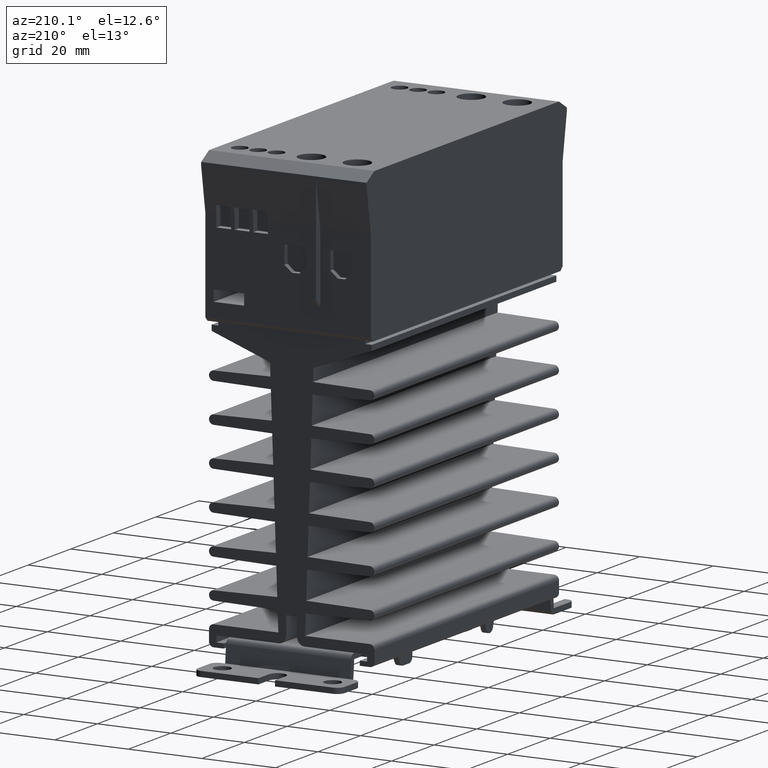
[diagram: clean part render]
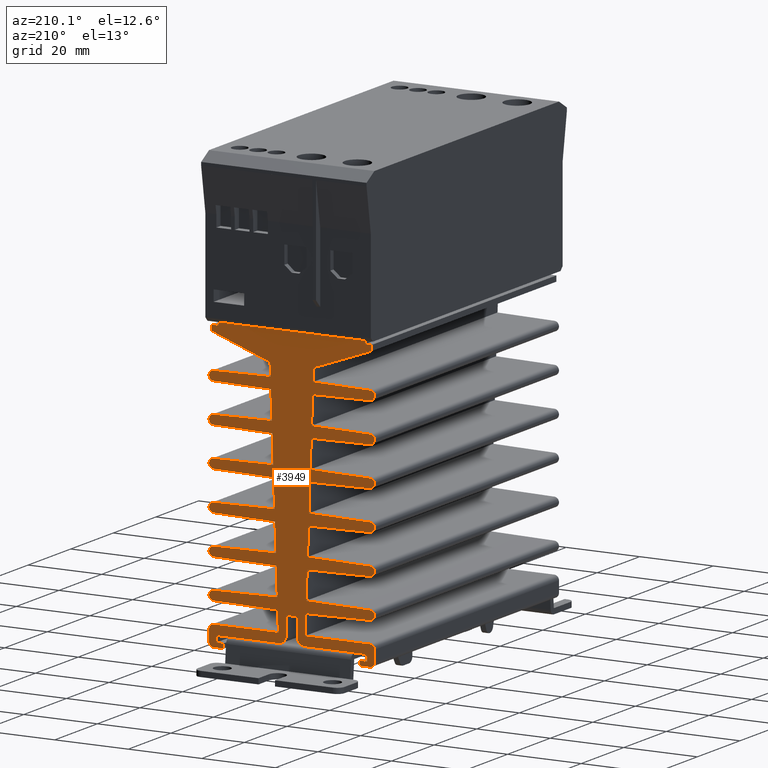
[diagram: same view with one face highlighted and labeled with its STEP entity id]
A machine part, auxiliary view. The second image highlights one B-rep face of the part: STEP entity #3949.
In plain terms, the highlighted planar face has unit normal (0, -1, 0).
Its self-contained STEP definition (entity closure, byte-faithful):
#89 = DIRECTION ( 'NONE',  ( -1.000000000000000000, -0.000000000000000000, -0.000000000000000000 ) ) ;
#104 = VECTOR ( 'NONE', #11266, 39.37007874015748854 ) ;
#108 = ORIENTED_EDGE ( 'NONE', *, *, #12640, .F. ) ;
#110 = CARTESIAN_POINT ( 'NONE',  ( 0.8374730514978977469, 1.704724409448818978, -0.4724484401989960669 ) ) ;
#114 = DIRECTION ( 'NONE',  ( 0.000000000000000000, -1.000000000000000000, 0.000000000000000000 ) ) ;
#124 = VECTOR ( 'NONE', #8234, 39.37007874015748854 ) ;
#142 = VERTEX_POINT ( 'NONE', #11741 ) ;
#153 = DIRECTION ( 'NONE',  ( 0.000000000000000000, 0.000000000000000000, 1.000000000000000000 ) ) ;
#179 = VECTOR ( 'NONE', #5690, 39.37007874015748854 ) ;
#191 = EDGE_CURVE ( 'NONE', #11931, #11494, #3990, .T. ) ;
#205 = CARTESIAN_POINT ( 'NONE',  ( 0.2679769780948815239, 1.704724409448818978, -2.984251968503937480 ) ) ;
#211 = VECTOR ( 'NONE', #5604, 39.37007874015748143 ) ;
#215 = VERTEX_POINT ( 'NONE', #1133 ) ;
#216 = EDGE_CURVE ( 'NONE', #5212, #12240, #6771, .T. ) ;
#224 = DIRECTION ( 'NONE',  ( 0.000000000000000000, 0.000000000000000000, 1.000000000000000000 ) ) ;
#227 = DIRECTION ( 'NONE',  ( -0.000000000000000000, -1.000000000000000000, -0.000000000000000000 ) ) ;
#272 = VERTEX_POINT ( 'NONE', #8054 ) ;
#278 = EDGE_CURVE ( 'NONE', #1367, #11478, #3499, .T. ) ;
#279 = DIRECTION ( 'NONE',  ( 0.000000000000000000, 0.000000000000000000, 1.000000000000000000 ) ) ;
#457 = VERTEX_POINT ( 'NONE', #857 ) ;
#471 = ORIENTED_EDGE ( 'NONE', *, *, #12169, .F. ) ;
#502 = LINE ( 'NONE', #6511, #12016 ) ;
#509 = VERTEX_POINT ( 'NONE', #12547 ) ;
#511 = EDGE_CURVE ( 'NONE', #4203, #6817, #4828, .T. ) ;
#529 = ORIENTED_EDGE ( 'NONE', *, *, #2043, .F. ) ;
#542 = ORIENTED_EDGE ( 'NONE', *, *, #2685, .F. ) ;
#545 = ORIENTED_EDGE ( 'NONE', *, *, #3127, .F. ) ;
#586 = CARTESIAN_POINT ( 'NONE',  ( -0.1547286108903885848, 1.704724409448818978, -2.547145264887157534 ) ) ;
#591 = CARTESIAN_POINT ( 'NONE',  ( -0.8582677165354331006, 1.704724409448818978, -0.09842519685039370636 ) ) ;
#598 = ORIENTED_EDGE ( 'NONE', *, *, #1713, .F. ) ;
#615 = ORIENTED_EDGE ( 'NONE', *, *, #8262, .F. ) ;
#640 = VECTOR ( 'NONE', #9376, 39.37007874015748143 ) ;
#643 = VERTEX_POINT ( 'NONE', #3413 ) ;
#645 = LINE ( 'NONE', #2562, #4109 ) ;
#670 = LINE ( 'NONE', #6556, #8925 ) ;
#692 = DIRECTION ( 'NONE',  ( -0.9998476951563911586, 0.000000000000000000, -0.01745240643728455249 ) ) ;
#693 = DIRECTION ( 'NONE',  ( 0.9998476951563912696, 0.000000000000000000, 0.01745240643728170407 ) ) ;
#704 = EDGE_CURVE ( 'NONE', #12538, #11361, #5523, .T. ) ;
#705 = VERTEX_POINT ( 'NONE', #591 ) ;
#707 = DIRECTION ( 'NONE',  ( -0.9998476951563911586, 0.000000000000000000, -0.01745240643728464963 ) ) ;
#754 = CARTESIAN_POINT ( 'NONE',  ( -0.8366141732283465249, 1.704724409448818978, -1.773622047244094446 ) ) ;
#766 = ORIENTED_EDGE ( 'NONE', *, *, #11023, .F. ) ;
#778 = EDGE_CURVE ( 'NONE', #10996, #6789, #7434, .T. ) ;
#782 = CIRCLE ( 'NONE', #6498, 0.07874015748031502893 ) ;
#792 = VECTOR ( 'NONE', #4495, 39.37007874015748143 ) ;
#799 = DIRECTION ( 'NONE',  ( 0.000000000000000000, 0.000000000000000000, 1.000000000000000000 ) ) ;
#805 = CARTESIAN_POINT ( 'NONE',  ( -0.8374730514978977469, 1.704724409448818978, -0.5708586464151772510 ) ) ;
#816 = VERTEX_POINT ( 'NONE', #8653 ) ;
#857 = CARTESIAN_POINT ( 'NONE',  ( 0.1504571211386029617, 1.704724409448818978, -2.669464727314661445 ) ) ;
#865 = EDGE_CURVE ( 'NONE', #9658, #12097, #2645, .T. ) ;
#866 = CARTESIAN_POINT ( 'NONE',  ( -0.8582677165354331006, 1.704724409448818978, -0.03937007874015747977 ) ) ;
#887 = EDGE_CURVE ( 'NONE', #8891, #2118, #5582, .T. ) ;
#893 = VERTEX_POINT ( 'NONE', #3731 ) ;
#1002 = VECTOR ( 'NONE', #2360, 39.37007874015748854 ) ;
#1033 = VECTOR ( 'NONE', #2287, 39.37007874015748143 ) ;
#1041 = CARTESIAN_POINT ( 'NONE',  ( -0.8374730514978977469, 1.704724409448818978, -0.9881814810608464672 ) ) ;
#1051 = EDGE_CURVE ( 'NONE', #10558, #11000, #4999, .T. ) ;
#1057 = DIRECTION ( 'NONE',  ( 0.000000000000000000, 0.000000000000000000, 1.000000000000000000 ) ) ;
#1058 = CARTESIAN_POINT ( 'NONE',  ( -0.8858267716535432879, 1.704724409448818978, -2.931102362204724532 ) ) ;
#1069 = CARTESIAN_POINT ( 'NONE',  ( 0.1650392441008238231, 1.704724409448818978, -2.251887360765897572 ) ) ;
#1078 = CARTESIAN_POINT ( 'NONE',  ( 0.1942034900252653518, 1.704724409448818978, -1.416732627668364275 ) ) ;
#1091 = VERTEX_POINT ( 'NONE', #9274 ) ;
#1131 = LINE ( 'NONE', #1069, #1860 ) ;
#1133 = CARTESIAN_POINT ( 'NONE',  ( -0.05905511811023504698, 1.704724409448818978, -2.708661417322834719 ) ) ;
#1137 = VECTOR ( 'NONE', #10939, 39.37007874015748143 ) ;
#1148 = AXIS2_PLACEMENT_3D ( 'NONE', #11261, #9226, #6163 ) ;
#1166 = CARTESIAN_POINT ( 'NONE',  ( 0.1796213670630445181, 1.704724409448818978, -1.834309994217129924 ) ) ;
#1170 = VECTOR ( 'NONE', #6994, 39.37007874015748143 ) ;
#1190 = ORIENTED_EDGE ( 'NONE', *, *, #10111, .F. ) ;
#1233 = CARTESIAN_POINT ( 'NONE',  ( -0.8374730514978977469, 1.704724409448818978, -0.8897712748446653386 ) ) ;
#1238 = VECTOR ( 'NONE', #11949, 39.37007874015748854 ) ;
#1239 = DIRECTION ( 'NONE',  ( 0.000000000000000000, 0.000000000000000000, -1.000000000000000000 ) ) ;
#1253 = CARTESIAN_POINT ( 'NONE',  ( 0.8366141732283465249, 1.704724409448818978, -2.190944881889763884 ) ) ;
#1262 = EDGE_CURVE ( 'NONE', #8512, #8093, #4336, .T. ) ;
#1272 = DIRECTION ( 'NONE',  ( -0.000000000000000000, -0.000000000000000000, -1.000000000000000000 ) ) ;
#1297 = CARTESIAN_POINT ( 'NONE',  ( -0.8366141732283465249, 1.704724409448818978, -1.356299212598425230 ) ) ;
#1332 = CARTESIAN_POINT ( 'NONE',  ( 0.1547286108903885848, 1.704724409448818978, -2.547145264887157534 ) ) ;
#1347 = VERTEX_POINT ( 'NONE', #866 ) ;
#1361 = CIRCLE ( 'NONE', #3209, 0.04921259842519689481 ) ;
#1367 = VERTEX_POINT ( 'NONE', #6564 ) ;
#1400 = CARTESIAN_POINT ( 'NONE',  ( -0.1547286108903885848, 1.704724409448818978, -2.547145264887157534 ) ) ;
#1418 = DIRECTION ( 'NONE',  ( -0.000000000000000000, -1.000000000000000000, -0.000000000000000000 ) ) ;
#1420 = LINE ( 'NONE', #12031, #10608 ) ;
#1439 = AXIS2_PLACEMENT_3D ( 'NONE', #9812, #11596, #4766 ) ;
#1443 = ORIENTED_EDGE ( 'NONE', *, *, #10199, .F. ) ;
#1465 = LINE ( 'NONE', #1400, #1002 ) ;
#1487 = VERTEX_POINT ( 'NONE', #8926 ) ;
#1520 = VECTOR ( 'NONE', #11938, 39.37007874015748143 ) ;
#1532 = VERTEX_POINT ( 'NONE', #9876 ) ;
#1538 = ORIENTED_EDGE ( 'NONE', *, *, #865, .F. ) ;
#1543 = LINE ( 'NONE', #5516, #8756 ) ;
#1564 = CARTESIAN_POINT ( 'NONE',  ( -0.7283464566929134243, 1.704724409448818978, -3.100393700787401841 ) ) ;
#1577 = DIRECTION ( 'NONE',  ( 0.000000000000000000, 0.000000000000000000, 1.000000000000000000 ) ) ;
#1621 = ORIENTED_EDGE ( 'NONE', *, *, #10960, .F. ) ;
#1632 = CARTESIAN_POINT ( 'NONE',  ( -0.8374730514978977469, 1.704724409448818978, -2.240149984997854116 ) ) ;
#1694 = DIRECTION ( 'NONE',  ( 1.000000000000000000, 0.000000000000000000, 0.000000000000000000 ) ) ;
#1707 = CARTESIAN_POINT ( 'NONE',  ( -0.8374730514978977469, 1.704724409448818978, -2.657472819643523554 ) ) ;
#1713 = EDGE_CURVE ( 'NONE', #7411, #5882, #3610, .T. ) ;
#1740 = ORIENTED_EDGE ( 'NONE', *, *, #9184, .F. ) ;
#1743 = ORIENTED_EDGE ( 'NONE', *, *, #4654, .F. ) ;
#1754 = VERTEX_POINT ( 'NONE', #6551 ) ;
#1790 = ORIENTED_EDGE ( 'NONE', *, *, #7802, .F. ) ;
#1832 = EDGE_CURVE ( 'NONE', #4976, #12568, #8533, .T. ) ;
#1860 = VECTOR ( 'NONE', #4931, 39.37007874015748143 ) ;
#1875 = VERTEX_POINT ( 'NONE', #5840 ) ;
#1886 = VERTEX_POINT ( 'NONE', #9040 ) ;
#1912 = DIRECTION ( 'NONE',  ( -1.000000000000000000, -0.000000000000000000, -0.000000000000000000 ) ) ;
#1924 = CARTESIAN_POINT ( 'NONE',  ( 0.8582677165354331006, 1.704724409448818978, -0.09842519685039370636 ) ) ;
#1937 = CARTESIAN_POINT ( 'NONE',  ( -0.8374730514978977469, 1.704724409448818978, -0.4724484401989960669 ) ) ;
#1944 = VECTOR ( 'NONE', #12601, 39.37007874015748854 ) ;
#1961 = EDGE_CURVE ( 'NONE', #12240, #2079, #1361, .T. ) ;
#1962 = AXIS2_PLACEMENT_3D ( 'NONE', #6854, #4956, #224 ) ;
#1972 = DIRECTION ( 'NONE',  ( -0.000000000000000000, -1.000000000000000000, -0.000000000000000000 ) ) ;
#1989 = CARTESIAN_POINT ( 'NONE',  ( -0.8366141732283465249, 1.704724409448818978, -2.608267716535433323 ) ) ;
#1996 = EDGE_CURVE ( 'NONE', #816, #9658, #6275, .T. ) ;
#2043 = EDGE_CURVE ( 'NONE', #9307, #11036, #10136, .T. ) ;
#2056 = CARTESIAN_POINT ( 'NONE',  ( -0.2087856129874862410, 1.704724409448818978, -0.9991552611195984035 ) ) ;
#2059 = CIRCLE ( 'NONE', #1439, 0.04921259842519689481 ) ;
#2074 = DIRECTION ( 'NONE',  ( -1.000000000000000000, -0.000000000000000000, -0.000000000000000000 ) ) ;
#2079 = VERTEX_POINT ( 'NONE', #5380 ) ;
#2083 = EDGE_CURVE ( 'NONE', #2079, #142, #11071, .T. ) ;
#2109 = EDGE_CURVE ( 'NONE', #6076, #10996, #11316, .T. ) ;
#2114 = LINE ( 'NONE', #9980, #1238 ) ;
#2118 = VERTEX_POINT ( 'NONE', #7429 ) ;
#2156 = CARTESIAN_POINT ( 'NONE',  ( -0.8366141732283465249, 1.704724409448818978, -2.190944881889763884 ) ) ;
#2213 = DIRECTION ( 'NONE',  ( -0.000000000000000000, -0.000000000000000000, 1.000000000000000000 ) ) ;
#2220 = LINE ( 'NONE', #9957, #1033 ) ;
#2233 = VECTOR ( 'NONE', #3386, 39.37007874015748143 ) ;
#2236 = CIRCLE ( 'NONE', #7342, 0.04921259842519682542 ) ;
#2246 = DIRECTION ( 'NONE',  ( 0.03489949670250183655, 0.000000000000000000, 0.9993908270190955401 ) ) ;
#2254 = AXIS2_PLACEMENT_3D ( 'NONE', #754, #3766, #12385 ) ;
#2284 = ORIENTED_EDGE ( 'NONE', *, *, #278, .F. ) ;
#2287 = DIRECTION ( 'NONE',  ( 0.03489949670250153818, 0.000000000000000000, 0.9993908270190957621 ) ) ;
#2288 = EDGE_CURVE ( 'NONE', #8831, #6681, #6242, .T. ) ;
#2296 = ORIENTED_EDGE ( 'NONE', *, *, #11432, .F. ) ;
#2318 = CARTESIAN_POINT ( 'NONE',  ( 0.8374730514978977469, 1.704724409448818978, -1.724416944136004215 ) ) ;
#2327 = ORIENTED_EDGE ( 'NONE', *, *, #7315, .F. ) ;
#2337 = VERTEX_POINT ( 'NONE', #10848 ) ;
#2347 = VECTOR ( 'NONE', #3133, 39.37007874015748143 ) ;
#2360 = DIRECTION ( 'NONE',  ( -0.9998476951563911586, 0.000000000000000000, -0.01745240643728510066 ) ) ;
#2373 = LINE ( 'NONE', #10360, #792 ) ;
#2383 = DIRECTION ( 'NONE',  ( -0.000000000000000000, -0.000000000000000000, 1.000000000000000000 ) ) ;
#2387 = ORIENTED_EDGE ( 'NONE', *, *, #778, .F. ) ;
#2393 = VECTOR ( 'NONE', #89, 39.37007874015748143 ) ;
#2441 = CARTESIAN_POINT ( 'NONE',  ( 0.2129860384567693055, 1.704724409448818978, -0.8788708134852026843 ) ) ;
#2476 = VERTEX_POINT ( 'NONE', #10326 ) ;
#2552 = CARTESIAN_POINT ( 'NONE',  ( 0.8374730514978977469, 1.704724409448818978, -1.405504315706515683 ) ) ;
#2553 = DIRECTION ( 'NONE',  ( 0.03489949670250168390, 0.000000000000000000, -0.9993908270190955401 ) ) ;
#2562 = CARTESIAN_POINT ( 'NONE',  ( 0.2679769780948815239, 1.704724409448818978, -3.051181102362204633 ) ) ;
#2611 = CARTESIAN_POINT ( 'NONE',  ( 0.8366141732283465249, 1.704724409448818978, -2.608267716535433323 ) ) ;
#2620 = CARTESIAN_POINT ( 'NONE',  ( 0.2087856129874862410, 1.704724409448818978, -0.9991552611195984035 ) ) ;
#2635 = LINE ( 'NONE', #2441, #9988 ) ;
#2645 = LINE ( 'NONE', #4814, #7658 ) ;
#2668 = CIRCLE ( 'NONE', #12243, 0.04921259842519689481 ) ;
#2685 = EDGE_CURVE ( 'NONE', #2476, #8512, #7700, .T. ) ;
#2719 = CARTESIAN_POINT ( 'NONE',  ( 0.8070866141732283561, 1.704724409448818978, -3.051181102362204633 ) ) ;
#2744 = CARTESIAN_POINT ( 'NONE',  ( -0.8374730514978977469, 1.704724409448818978, -1.405504315706515683 ) ) ;
#2815 = CARTESIAN_POINT ( 'NONE',  ( 0.1504571211386031560, 1.704724409448818978, -2.669464727314661445 ) ) ;
#2834 = LINE ( 'NONE', #3980, #5671 ) ;
#2850 = CARTESIAN_POINT ( 'NONE',  ( 0.1984216815651739796, 1.704724409448818978, -1.295939426335692701 ) ) ;
#2874 = VERTEX_POINT ( 'NONE', #4326 ) ;
#2885 = CARTESIAN_POINT ( 'NONE',  ( -0.8858267716535432879, 1.704724409448818978, -3.051181102362204633 ) ) ;
#2895 = DIRECTION ( 'NONE',  ( -0.9998476951563911586, 0.000000000000000000, -0.01745240643728535046 ) ) ;
#2929 = ORIENTED_EDGE ( 'NONE', *, *, #8865, .F. ) ;
#2934 = EDGE_CURVE ( 'NONE', #11036, #3368, #10638, .T. ) ;
#2947 = ORIENTED_EDGE ( 'NONE', *, *, #9458, .F. ) ;
#3010 = AXIS2_PLACEMENT_3D ( 'NONE', #8472, #7514, #10695 ) ;
#3058 = VERTEX_POINT ( 'NONE', #2719 ) ;
#3068 = AXIS2_PLACEMENT_3D ( 'NONE', #7332, #6185, #1577 ) ;
#3076 = VERTEX_POINT ( 'NONE', #6989 ) ;
#3098 = CARTESIAN_POINT ( 'NONE',  ( 0.2322834645669291376, 1.704724409448818978, -0.3262648316863236420 ) ) ;
#3100 = EDGE_CURVE ( 'NONE', #705, #1347, #8852, .T. ) ;
#3101 = CARTESIAN_POINT ( 'NONE',  ( -0.8366141732283465249, 1.704724409448818978, -2.881889763779527769 ) ) ;
#3124 = LINE ( 'NONE', #11639, #5742 ) ;
#3127 = EDGE_CURVE ( 'NONE', #11591, #8831, #10932, .T. ) ;
#3133 = DIRECTION ( 'NONE',  ( 0.9998476951563912696, 0.000000000000000000, 0.01745240643728245347 ) ) ;
#3161 = DIRECTION ( 'NONE',  ( 0.000000000000000000, 0.000000000000000000, -1.000000000000000000 ) ) ;
#3164 = LINE ( 'NONE', #7051, #1170 ) ;
#3181 = VERTEX_POINT ( 'NONE', #586 ) ;
#3204 = VECTOR ( 'NONE', #8302, 39.37007874015748143 ) ;
#3209 = AXIS2_PLACEMENT_3D ( 'NONE', #9163, #1418, #10242 ) ;
#3215 = VERTEX_POINT ( 'NONE', #10112 ) ;
#3261 = EDGE_CURVE ( 'NONE', #8093, #5212, #5771, .T. ) ;
#3278 = CARTESIAN_POINT ( 'NONE',  ( 0.1430390754059370217, 1.704724409448818978, -2.881889763779527769 ) ) ;
#3282 = VECTOR ( 'NONE', #10716, 39.37007874015748143 ) ;
#3284 = VECTOR ( 'NONE', #1272, 39.37007874015748143 ) ;
#3287 = ORIENTED_EDGE ( 'NONE', *, *, #6360, .F. ) ;
#3289 = CARTESIAN_POINT ( 'NONE',  ( 0.8374730514978977469, 1.704724409448818978, -2.559062613427342203 ) ) ;
#3301 = ORIENTED_EDGE ( 'NONE', *, *, #5727, .F. ) ;
#3367 = CARTESIAN_POINT ( 'NONE',  ( -0.8374730514978977469, 1.704724409448818978, -2.559062613427342203 ) ) ;
#3368 = VERTEX_POINT ( 'NONE', #2056 ) ;
#3378 = DIRECTION ( 'NONE',  ( 0.000000000000000000, 0.000000000000000000, 1.000000000000000000 ) ) ;
#3386 = DIRECTION ( 'NONE',  ( 0.000000000000000000, 0.000000000000000000, -1.000000000000000000 ) ) ;
#3413 = CARTESIAN_POINT ( 'NONE',  ( -0.8374730514978977469, 1.704724409448818978, -1.822827150352184900 ) ) ;
#3422 = VERTEX_POINT ( 'NONE', #1924 ) ;
#3490 = VECTOR ( 'NONE', #4464, 39.37007874015748143 ) ;
#3499 = LINE ( 'NONE', #1632, #1520 ) ;
#3514 = CARTESIAN_POINT ( 'NONE',  ( 0.8070866141732283561, 1.704724409448818978, -3.051181102362204633 ) ) ;
#3533 = ORIENTED_EDGE ( 'NONE', *, *, #3798, .T. ) ;
#3610 = LINE ( 'NONE', #7761, #12570 ) ;
#3676 = CARTESIAN_POINT ( 'NONE',  ( 0.7283464566929134243, 1.704724409448818978, -3.100393700787401841 ) ) ;
#3681 = VECTOR ( 'NONE', #8068, 39.37007874015748143 ) ;
#3731 = CARTESIAN_POINT ( 'NONE',  ( -0.8374730514978977469, 1.704724409448818978, -1.724416944136004215 ) ) ;
#3734 = ORIENTED_EDGE ( 'NONE', *, *, #2109, .F. ) ;
#3755 = LINE ( 'NONE', #12251, #3490 ) ;
#3766 = DIRECTION ( 'NONE',  ( 0.000000000000000000, -1.000000000000000000, 0.000000000000000000 ) ) ;
#3781 = CARTESIAN_POINT ( 'NONE',  ( -0.8070866141732283561, 1.704724409448818978, -2.984251968503937480 ) ) ;
#3798 = EDGE_CURVE ( 'NONE', #7642, #12086, #5344, .T. ) ;
#3843 = ORIENTED_EDGE ( 'NONE', *, *, #9882, .F. ) ;
#3853 = DIRECTION ( 'NONE',  ( -1.000000000000000000, -0.000000000000000000, -0.000000000000000000 ) ) ;
#3875 = ORIENTED_EDGE ( 'NONE', *, *, #511, .F. ) ;
#3896 = VERTEX_POINT ( 'NONE', #11217 ) ;
#3900 = DIRECTION ( 'NONE',  ( -0.9998476951563911586, 0.000000000000000000, -0.01745240643728505209 ) ) ;
#3920 = CARTESIAN_POINT ( 'NONE',  ( -0.05905511811023495677, 1.704724409448818978, -2.905511811023622215 ) ) ;
#3931 = VERTEX_POINT ( 'NONE', #9682 ) ;
#3939 = CARTESIAN_POINT ( 'NONE',  ( 0.2233677359497071024, 1.704724409448818978, -0.5815778945708323100 ) ) ;
#3949 = ADVANCED_FACE ( 'NONE', ( #11407 ), #11664, .F. ) ;
#3951 = LINE ( 'NONE', #10961, #8808 ) ;
#3960 = CARTESIAN_POINT ( 'NONE',  ( 0.2679769780948815239, 1.704724409448818978, -0.03937007874015747977 ) ) ;
#3968 = EDGE_CURVE ( 'NONE', #8175, #11682, #670, .T. ) ;
#3969 = ORIENTED_EDGE ( 'NONE', *, *, #704, .F. ) ;
#3970 = VERTEX_POINT ( 'NONE', #2850 ) ;
#3980 = CARTESIAN_POINT ( 'NONE',  ( 0.2322834645669291376, 1.704724409448818978, -0.3262648316863236420 ) ) ;
#3990 = CIRCLE ( 'NONE', #5213, 0.07874015748031502893 ) ;
#3998 = VERTEX_POINT ( 'NONE', #6800 ) ;
#4109 = VECTOR ( 'NONE', #7362, 39.37007874015748143 ) ;
#4123 = CARTESIAN_POINT ( 'NONE',  ( -0.8366141732283465249, 1.704724409448818978, -0.5216535433070865757 ) ) ;
#4125 = EDGE_CURVE ( 'NONE', #2118, #11052, #3164, .T. ) ;
#4148 = CARTESIAN_POINT ( 'NONE',  ( 0.8582677165354331006, 1.704724409448818978, -0.03937007874015747977 ) ) ;
#4179 = DIRECTION ( 'NONE',  ( -0.000000000000000000, -1.000000000000000000, -0.000000000000000000 ) ) ;
#4181 = EDGE_CURVE ( 'NONE', #1487, #1347, #7120, .T. ) ;
#4196 = DIRECTION ( 'NONE',  ( -0.000000000000000000, -1.000000000000000000, -0.000000000000000000 ) ) ;
#4203 = VERTEX_POINT ( 'NONE', #8506 ) ;
#4271 = CIRCLE ( 'NONE', #8775, 0.04921259842519689481 ) ;
#4308 = DIRECTION ( 'NONE',  ( -0.9998476951563911586, 0.000000000000000000, 0.01745240643728455249 ) ) ;
#4326 = CARTESIAN_POINT ( 'NONE',  ( -0.8374730514978977469, 1.704724409448818978, -2.141739778781673209 ) ) ;
#4333 = CARTESIAN_POINT ( 'NONE',  ( 0.8858267716535432879, 1.704724409448818978, -3.051181102362204633 ) ) ;
#4336 = LINE ( 'NONE', #9313, #124 ) ;
#4352 = CARTESIAN_POINT ( 'NONE',  ( 0.8858267716535432879, 1.704724409448818978, -2.931102362204724532 ) ) ;
#4354 = CARTESIAN_POINT ( 'NONE',  ( 0.05905511811023504698, 1.704724409448818978, -1.612511619520417216 ) ) ;
#4370 = DIRECTION ( 'NONE',  ( 0.03489949670250193370, 0.000000000000000000, -0.9993908270190955401 ) ) ;
#4404 = ORIENTED_EDGE ( 'NONE', *, *, #12287, .F. ) ;
#4420 = EDGE_CURVE ( 'NONE', #12158, #5173, #11743, .T. ) ;
#4421 = ORIENTED_EDGE ( 'NONE', *, *, #6337, .F. ) ;
#4464 = DIRECTION ( 'NONE',  ( 0.9396926207859085389, 0.000000000000000000, -0.3420201433256683243 ) ) ;
#4492 = ORIENTED_EDGE ( 'NONE', *, *, #8573, .F. ) ;
#4495 = DIRECTION ( 'NONE',  ( 1.000000000000000000, 0.000000000000000000, 0.000000000000000000 ) ) ;
#4537 = CARTESIAN_POINT ( 'NONE',  ( 0.8582677165354331006, 1.704724409448818978, -0.03937007874015747977 ) ) ;
#4575 = DIRECTION ( 'NONE',  ( 0.000000000000000000, 0.000000000000000000, -1.000000000000000000 ) ) ;
#4654 = EDGE_CURVE ( 'NONE', #1875, #1886, #5677, .T. ) ;
#4689 = DIRECTION ( 'NONE',  ( 0.03489949670250178104, 0.000000000000000000, 0.9993908270190955401 ) ) ;
#4723 = CARTESIAN_POINT ( 'NONE',  ( 0.2679769780948815239, 1.704724409448818978, -3.051181102362204633 ) ) ;
#4766 = DIRECTION ( 'NONE',  ( 0.000000000000000000, 0.000000000000000000, 1.000000000000000000 ) ) ;
#4774 = DIRECTION ( 'NONE',  ( -0.000000000000000000, -1.000000000000000000, -0.000000000000000000 ) ) ;
#4789 = ORIENTED_EDGE ( 'NONE', *, *, #3100, .T. ) ;
#4791 = LINE ( 'NONE', #10469, #11427 ) ;
#4814 = CARTESIAN_POINT ( 'NONE',  ( -0.2275503953483641872, 1.704724409448818978, -0.4618022006347142216 ) ) ;
#4827 = EDGE_CURVE ( 'NONE', #643, #3076, #7719, .T. ) ;
#4828 = LINE ( 'NONE', #3939, #8071 ) ;
#4830 = VERTEX_POINT ( 'NONE', #6757 ) ;
#4919 = ORIENTED_EDGE ( 'NONE', *, *, #7176, .T. ) ;
#4931 = DIRECTION ( 'NONE',  ( 0.9998476951563912696, 0.000000000000000000, 0.01745240643728250551 ) ) ;
#4956 = DIRECTION ( 'NONE',  ( -0.000000000000000000, -1.000000000000000000, -0.000000000000000000 ) ) ;
#4976 = VERTEX_POINT ( 'NONE', #10018 ) ;
#4979 = DIRECTION ( 'NONE',  ( 0.000000000000000000, 0.000000000000000000, 1.000000000000000000 ) ) ;
#4993 = DIRECTION ( 'NONE',  ( 0.9998476951563912696, 0.000000000000000000, 0.01745240643728120447 ) ) ;
#4999 = LINE ( 'NONE', #8011, #10519 ) ;
#5023 = ORIENTED_EDGE ( 'NONE', *, *, #10008, .F. ) ;
#5173 = VERTEX_POINT ( 'NONE', #3101 ) ;
#5210 = EDGE_CURVE ( 'NONE', #9393, #8175, #782, .T. ) ;
#5212 = VERTEX_POINT ( 'NONE', #1166 ) ;
#5213 = AXIS2_PLACEMENT_3D ( 'NONE', #8883, #1972, #6825 ) ;
#5244 = CARTESIAN_POINT ( 'NONE',  ( 0.8374730514978977469, 1.704724409448818978, -1.307094109490334777 ) ) ;
#5261 = CARTESIAN_POINT ( 'NONE',  ( 0.1377952755905511861, 1.704724409448818978, -2.905511811023622215 ) ) ;
#5287 = ORIENTED_EDGE ( 'NONE', *, *, #12037, .F. ) ;
#5304 = ORIENTED_EDGE ( 'NONE', *, *, #1262, .F. ) ;
#5307 = CIRCLE ( 'NONE', #2254, 0.04921259842519689481 ) ;
#5344 = LINE ( 'NONE', #1564, #12387 ) ;
#5364 = DIRECTION ( 'NONE',  ( -0.000000000000000000, -0.000000000000000000, 1.000000000000000000 ) ) ;
#5368 = EDGE_CURVE ( 'NONE', #6789, #2337, #1543, .T. ) ;
#5380 = CARTESIAN_POINT ( 'NONE',  ( 0.8374730514978977469, 1.704724409448818978, -1.724416944136004215 ) ) ;
#5387 = ORIENTED_EDGE ( 'NONE', *, *, #6648, .F. ) ;
#5388 = ORIENTED_EDGE ( 'NONE', *, *, #7449, .T. ) ;
#5394 = EDGE_CURVE ( 'NONE', #142, #12258, #11644, .T. ) ;
#5435 = ORIENTED_EDGE ( 'NONE', *, *, #10990, .F. ) ;
#5436 = ORIENTED_EDGE ( 'NONE', *, *, #191, .F. ) ;
#5448 = CARTESIAN_POINT ( 'NONE',  ( -0.2322834645669291376, 1.704724409448818978, -0.3262648316863236420 ) ) ;
#5457 = AXIS2_PLACEMENT_3D ( 'NONE', #9890, #7013, #4979 ) ;
#5474 = LINE ( 'NONE', #12305, #640 ) ;
#5495 = CARTESIAN_POINT ( 'NONE',  ( 0.05905511811023504698, 1.704724409448818978, -2.708661417322834719 ) ) ;
#5511 = AXIS2_PLACEMENT_3D ( 'NONE', #1989, #5889, #9794 ) ;
#5516 = CARTESIAN_POINT ( 'NONE',  ( 0.000000000000000000, 1.704724409448818978, 0.000000000000000000 ) ) ;
#5523 = LINE ( 'NONE', #12220, #104 ) ;
#5527 = EDGE_CURVE ( 'NONE', #10931, #3998, #5957, .T. ) ;
#5572 = CARTESIAN_POINT ( 'NONE',  ( 0.8374730514978977469, 1.704724409448818978, -1.822827150352184900 ) ) ;
#5576 = LINE ( 'NONE', #9475, #12242 ) ;
#5582 = LINE ( 'NONE', #9480, #1944 ) ;
#5604 = DIRECTION ( 'NONE',  ( 0.9998476951563912696, 0.000000000000000000, -0.01745240643728175611 ) ) ;
#5644 = VERTEX_POINT ( 'NONE', #5244 ) ;
#5671 = VECTOR ( 'NONE', #10624, 39.37007874015748854 ) ;
#5677 = CIRCLE ( 'NONE', #10772, 0.04921259842519689481 ) ;
#5690 = DIRECTION ( 'NONE',  ( -0.9998476951563911586, 0.000000000000000000, 0.01745240643728535046 ) ) ;
#5705 = DIRECTION ( 'NONE',  ( 0.03489949670250168390, 0.000000000000000000, 0.9993908270190955401 ) ) ;
#5727 = EDGE_CURVE ( 'NONE', #11361, #893, #502, .T. ) ;
#5742 = VECTOR ( 'NONE', #2895, 39.37007874015748854 ) ;
#5771 = LINE ( 'NONE', #7562, #7487 ) ;
#5777 = VERTEX_POINT ( 'NONE', #2552 ) ;
#5790 = EDGE_CURVE ( 'NONE', #5644, #3970, #12388, .T. ) ;
#5798 = DIRECTION ( 'NONE',  ( 0.9998476951563912696, 0.000000000000000000, -0.01745240643728250551 ) ) ;
#5812 = CARTESIAN_POINT ( 'NONE',  ( 0.2679769780948815239, 1.704724409448818978, -2.881889763779527769 ) ) ;
#5838 = DIRECTION ( 'NONE',  ( -0.000000000000000000, -1.000000000000000000, -0.000000000000000000 ) ) ;
#5840 = CARTESIAN_POINT ( 'NONE',  ( 0.8374730514978977469, 1.704724409448818978, -2.657472819643523554 ) ) ;
#5882 = VERTEX_POINT ( 'NONE', #2885 ) ;
#5884 = ORIENTED_EDGE ( 'NONE', *, *, #1961, .F. ) ;
#5889 = DIRECTION ( 'NONE',  ( 0.000000000000000000, -1.000000000000000000, 0.000000000000000000 ) ) ;
#5893 = EDGE_CURVE ( 'NONE', #3931, #12538, #12577, .T. ) ;
#5894 = ORIENTED_EDGE ( 'NONE', *, *, #2288, .F. ) ;
#5957 = LINE ( 'NONE', #1332, #10183 ) ;
#6029 = CARTESIAN_POINT ( 'NONE',  ( -0.8582677165354331006, 1.704724409448818978, -0.03937007874015747977 ) ) ;
#6064 = EDGE_CURVE ( 'NONE', #3076, #3215, #6308, .T. ) ;
#6076 = VERTEX_POINT ( 'NONE', #4537 ) ;
#6130 = EDGE_CURVE ( 'NONE', #7642, #9787, #10518, .T. ) ;
#6136 = CARTESIAN_POINT ( 'NONE',  ( -0.8070866141732283561, 1.704724409448818978, -3.051181102362204633 ) ) ;
#6163 = DIRECTION ( 'NONE',  ( 0.000000000000000000, 0.000000000000000000, -1.000000000000000000 ) ) ;
#6185 = DIRECTION ( 'NONE',  ( -0.000000000000000000, -1.000000000000000000, -0.000000000000000000 ) ) ;
#6200 = LINE ( 'NONE', #205, #3681 ) ;
#6242 = LINE ( 'NONE', #11042, #12165 ) ;
#6275 = LINE ( 'NONE', #5448, #11566 ) ;
#6308 = LINE ( 'NONE', #9258, #11215 ) ;
#6315 = VECTOR ( 'NONE', #2074, 39.37007874015748143 ) ;
#6318 = EDGE_CURVE ( 'NONE', #12097, #10301, #2236, .T. ) ;
#6320 = CARTESIAN_POINT ( 'NONE',  ( -0.8070866141732283561, 1.704724409448818978, -3.051181102362204633 ) ) ;
#6337 = EDGE_CURVE ( 'NONE', #11478, #3181, #1420, .T. ) ;
#6358 = DIRECTION ( 'NONE',  ( -0.000000000000000000, -0.000000000000000000, -1.000000000000000000 ) ) ;
#6360 = EDGE_CURVE ( 'NONE', #3896, #3931, #11428, .T. ) ;
#6374 = ORIENTED_EDGE ( 'NONE', *, *, #216, .F. ) ;
#6384 = CARTESIAN_POINT ( 'NONE',  ( 0.2679769780948815239, 1.704724409448818978, -3.100393700787401841 ) ) ;
#6392 = CARTESIAN_POINT ( 'NONE',  ( -0.1430390754059372160, 1.704724409448818978, -2.881889763779527769 ) ) ;
#6422 = ORIENTED_EDGE ( 'NONE', *, *, #6064, .F. ) ;
#6444 = CARTESIAN_POINT ( 'NONE',  ( 0.1547286108903881685, 1.704724409448818978, -2.547145264887157534 ) ) ;
#6470 = ORIENTED_EDGE ( 'NONE', *, *, #9486, .F. ) ;
#6498 = AXIS2_PLACEMENT_3D ( 'NONE', #5261, #4179, #279 ) ;
#6511 = CARTESIAN_POINT ( 'NONE',  ( -0.1838573246735787370, 1.704724409448818978, -1.713008039186181053 ) ) ;
#6547 = ORIENTED_EDGE ( 'NONE', *, *, #2083, .F. ) ;
#6551 = CARTESIAN_POINT ( 'NONE',  ( -0.8366141732283465249, 1.704724409448818978, -3.100393700787401841 ) ) ;
#6553 = DIRECTION ( 'NONE',  ( 0.9998476951563912696, 0.000000000000000000, -0.01745240643728155489 ) ) ;
#6556 = CARTESIAN_POINT ( 'NONE',  ( 0.2679769780948815239, 1.704724409448818978, -2.984251968503937480 ) ) ;
#6564 = CARTESIAN_POINT ( 'NONE',  ( -0.8374730514978977469, 1.704724409448818978, -2.240149984997854116 ) ) ;
#6570 = DIRECTION ( 'NONE',  ( 0.9998476951563912696, 0.000000000000000000, -0.01745240643728170407 ) ) ;
#6636 = DIRECTION ( 'NONE',  ( 0.9998476951563912696, 0.000000000000000000, -0.01745240643728120447 ) ) ;
#6648 = EDGE_CURVE ( 'NONE', #12485, #509, #8585, .T. ) ;
#6681 = VERTEX_POINT ( 'NONE', #3278 ) ;
#6694 = EDGE_CURVE ( 'NONE', #11346, #11931, #6200, .T. ) ;
#6696 = ORIENTED_EDGE ( 'NONE', *, *, #6694, .F. ) ;
#6723 = VECTOR ( 'NONE', #2553, 39.37007874015748854 ) ;
#6734 = CIRCLE ( 'NONE', #3068, 0.04921259842519689481 ) ;
#6757 = CARTESIAN_POINT ( 'NONE',  ( 0.8366141732283465249, 1.704724409448818978, -3.100393700787401841 ) ) ;
#6762 = AXIS2_PLACEMENT_3D ( 'NONE', #11607, #4774, #799 ) ;
#6771 = LINE ( 'NONE', #7800, #2347 ) ;
#6789 = VERTEX_POINT ( 'NONE', #11827 ) ;
#6800 = CARTESIAN_POINT ( 'NONE',  ( 0.1650392441008238231, 1.704724409448818978, -2.251887360765897572 ) ) ;
#6817 = VERTEX_POINT ( 'NONE', #7354 ) ;
#6825 = DIRECTION ( 'NONE',  ( 0.000000000000000000, 0.000000000000000000, 1.000000000000000000 ) ) ;
#6848 = VECTOR ( 'NONE', #6553, 39.37007874015748143 ) ;
#6854 = CARTESIAN_POINT ( 'NONE',  ( 0.8366141732283465249, 1.704724409448818978, -2.931102362204724532 ) ) ;
#6871 = CARTESIAN_POINT ( 'NONE',  ( 0.8374730514978977469, 1.704724409448818978, -0.8897712748446653386 ) ) ;
#6970 = LINE ( 'NONE', #1078, #8171 ) ;
#6989 = CARTESIAN_POINT ( 'NONE',  ( -0.1796213670630445181, 1.704724409448818978, -1.834309994217129924 ) ) ;
#6994 = DIRECTION ( 'NONE',  ( 0.03489949670250134389, 0.000000000000000000, 0.9993908270190957621 ) ) ;
#7013 = DIRECTION ( 'NONE',  ( -0.000000000000000000, -1.000000000000000000, -0.000000000000000000 ) ) ;
#7015 = DIRECTION ( 'NONE',  ( -1.000000000000000000, -0.000000000000000000, -0.000000000000000000 ) ) ;
#7034 = ORIENTED_EDGE ( 'NONE', *, *, #5210, .F. ) ;
#7051 = CARTESIAN_POINT ( 'NONE',  ( 0.2275503953483641872, 1.704724409448818978, -0.4618022006347142216 ) ) ;
#7075 = VECTOR ( 'NONE', #4308, 39.37007874015748854 ) ;
#7109 = CARTESIAN_POINT ( 'NONE',  ( 0.05905511811023504698, 1.704724409448818978, -2.905511811023622215 ) ) ;
#7120 = LINE ( 'NONE', #8855, #2393 ) ;
#7123 = VERTEX_POINT ( 'NONE', #9842 ) ;
#7135 = ORIENTED_EDGE ( 'NONE', *, *, #1051, .F. ) ;
#7175 = CIRCLE ( 'NONE', #6762, 0.04921259842519689481 ) ;
#7176 = EDGE_CURVE ( 'NONE', #11346, #9787, #10979, .T. ) ;
#7199 = ORIENTED_EDGE ( 'NONE', *, *, #5527, .F. ) ;
#7216 = EDGE_CURVE ( 'NONE', #272, #10765, #11357, .T. ) ;
#7240 = CARTESIAN_POINT ( 'NONE',  ( 0.7874015748031496509, 1.704724409448818978, -1.612511619520417216 ) ) ;
#7296 = DIRECTION ( 'NONE',  ( -0.9998476951563911586, 0.000000000000000000, 0.01745240643728510066 ) ) ;
#7315 = EDGE_CURVE ( 'NONE', #509, #7123, #10709, .T. ) ;
#7332 = CARTESIAN_POINT ( 'NONE',  ( 0.8366141732283465249, 1.704724409448818978, -1.356299212598425230 ) ) ;
#7338 = VECTOR ( 'NONE', #8382, 39.37007874015748143 ) ;
#7342 = AXIS2_PLACEMENT_3D ( 'NONE', #4123, #8025, #3161 ) ;
#7350 = AXIS2_PLACEMENT_3D ( 'NONE', #1297, #9999, #1239 ) ;
#7354 = CARTESIAN_POINT ( 'NONE',  ( 0.8374730514978977469, 1.704724409448818978, -0.5708586464151772510 ) ) ;
#7362 = DIRECTION ( 'NONE',  ( -1.000000000000000000, -0.000000000000000000, -0.000000000000000000 ) ) ;
#7406 = DIRECTION ( 'NONE',  ( 0.03489949670250178104, 0.000000000000000000, -0.9993908270190955401 ) ) ;
#7411 = VERTEX_POINT ( 'NONE', #1058 ) ;
#7429 = CARTESIAN_POINT ( 'NONE',  ( 0.2275503953483641872, 1.704724409448818978, -0.4618022006347142216 ) ) ;
#7434 = LINE ( 'NONE', #7240, #8080 ) ;
#7449 = EDGE_CURVE ( 'NONE', #1487, #2337, #3951, .T. ) ;
#7455 = CARTESIAN_POINT ( 'NONE',  ( -0.8374730514978977469, 1.704724409448818978, -0.5708586464151772510 ) ) ;
#7474 = CARTESIAN_POINT ( 'NONE',  ( 0.7874015748031496509, 1.704724409448818978, -0.03937007874015747977 ) ) ;
#7487 = VECTOR ( 'NONE', #4689, 39.37007874015748854 ) ;
#7488 = VECTOR ( 'NONE', #7493, 39.37007874015748143 ) ;
#7493 = DIRECTION ( 'NONE',  ( -1.000000000000000000, -0.000000000000000000, -0.000000000000000000 ) ) ;
#7514 = DIRECTION ( 'NONE',  ( 0.000000000000000000, -1.000000000000000000, 0.000000000000000000 ) ) ;
#7519 = CARTESIAN_POINT ( 'NONE',  ( 0.7283464566929134243, 1.704724409448818978, -3.100393700787401841 ) ) ;
#7562 = CARTESIAN_POINT ( 'NONE',  ( 0.1692929677819836609, 1.704724409448818978, -2.130076652036669405 ) ) ;
#7609 = ORIENTED_EDGE ( 'NONE', *, *, #10361, .F. ) ;
#7621 = EDGE_CURVE ( 'NONE', #457, #1875, #12459, .T. ) ;
#7627 = ORIENTED_EDGE ( 'NONE', *, *, #4125, .F. ) ;
#7632 = CARTESIAN_POINT ( 'NONE',  ( -0.2129860384567693055, 1.704724409448818978, -0.8788708134852026843 ) ) ;
#7641 = CARTESIAN_POINT ( 'NONE',  ( -0.1942034900252653518, 1.704724409448818978, -1.416732627668364275 ) ) ;
#7642 = VERTEX_POINT ( 'NONE', #10785 ) ;
#7649 = EDGE_CURVE ( 'NONE', #3998, #2476, #1131, .T. ) ;
#7658 = VECTOR ( 'NONE', #9542, 39.37007874015748854 ) ;
#7677 = CARTESIAN_POINT ( 'NONE',  ( 0.1838573246735787370, 1.704724409448818978, -1.713008039186181053 ) ) ;
#7687 = ORIENTED_EDGE ( 'NONE', *, *, #9702, .F. ) ;
#7700 = CIRCLE ( 'NONE', #11546, 0.04921259842519689481 ) ;
#7715 = CARTESIAN_POINT ( 'NONE',  ( -0.1377952755905511861, 1.704724409448818978, -2.984251968503937480 ) ) ;
#7719 = LINE ( 'NONE', #10710, #11392 ) ;
#7761 = CARTESIAN_POINT ( 'NONE',  ( -0.8858267716535432879, 1.704724409448818978, -1.612511619520417216 ) ) ;
#7788 = ORIENTED_EDGE ( 'NONE', *, *, #1996, .F. ) ;
#7800 = CARTESIAN_POINT ( 'NONE',  ( 0.1796213670630445181, 1.704724409448818978, -1.834309994217129924 ) ) ;
#7802 = EDGE_CURVE ( 'NONE', #11682, #3058, #12253, .T. ) ;
#7867 = CARTESIAN_POINT ( 'NONE',  ( -0.2275503953483641872, 1.704724409448818978, -0.4618022006347142216 ) ) ;
#7887 = CARTESIAN_POINT ( 'NONE',  ( 0.8366141732283465249, 1.704724409448818978, -0.5216535433070865757 ) ) ;
#7916 = CARTESIAN_POINT ( 'NONE',  ( -0.2129860384567693055, 1.704724409448818978, -0.8788708134852026843 ) ) ;
#7992 = VECTOR ( 'NONE', #693, 39.37007874015748143 ) ;
#8011 = CARTESIAN_POINT ( 'NONE',  ( 0.8374730514978977469, 1.704724409448818978, -0.8897712748446653386 ) ) ;
#8025 = DIRECTION ( 'NONE',  ( 0.000000000000000000, -1.000000000000000000, 0.000000000000000000 ) ) ;
#8049 = LINE ( 'NONE', #4148, #3282 ) ;
#8054 = CARTESIAN_POINT ( 'NONE',  ( -0.2233677359497067139, 1.704724409448818978, -0.5815778945708323100 ) ) ;
#8068 = DIRECTION ( 'NONE',  ( 1.000000000000000000, 0.000000000000000000, 0.000000000000000000 ) ) ;
#8071 = VECTOR ( 'NONE', #9557, 39.37007874015748143 ) ;
#8080 = VECTOR ( 'NONE', #2383, 39.37007874015748143 ) ;
#8093 = VERTEX_POINT ( 'NONE', #10381 ) ;
#8171 = VECTOR ( 'NONE', #4993, 39.37007874015748143 ) ;
#8175 = VERTEX_POINT ( 'NONE', #8853 ) ;
#8220 = ORIENTED_EDGE ( 'NONE', *, *, #4181, .F. ) ;
#8234 = DIRECTION ( 'NONE',  ( -0.9998476951563911586, 0.000000000000000000, 0.01745240643728464963 ) ) ;
#8262 = EDGE_CURVE ( 'NONE', #6817, #8891, #9938, .T. ) ;
#8302 = DIRECTION ( 'NONE',  ( -0.000000000000000000, -0.000000000000000000, -1.000000000000000000 ) ) ;
#8303 = CARTESIAN_POINT ( 'NONE',  ( -0.2233677359497071024, 1.704724409448818978, -0.5815778945708323100 ) ) ;
#8382 = DIRECTION ( 'NONE',  ( 1.000000000000000000, 0.000000000000000000, 0.000000000000000000 ) ) ;
#8393 = VECTOR ( 'NONE', #6570, 39.37007874015748143 ) ;
#8472 = CARTESIAN_POINT ( 'NONE',  ( 0.2679769780948815239, 1.704724409448818978, -1.612511619520417216 ) ) ;
#8477 = ORIENTED_EDGE ( 'NONE', *, *, #887, .F. ) ;
#8506 = CARTESIAN_POINT ( 'NONE',  ( 0.2233677359497067139, 1.704724409448818978, -0.5815778945708323100 ) ) ;
#8512 = VERTEX_POINT ( 'NONE', #9356 ) ;
#8515 = ORIENTED_EDGE ( 'NONE', *, *, #1832, .F. ) ;
#8533 = LINE ( 'NONE', #3676, #9523 ) ;
#8573 = EDGE_CURVE ( 'NONE', #11052, #3422, #2834, .T. ) ;
#8585 = CIRCLE ( 'NONE', #5511, 0.04921259842519689481 ) ;
#8653 = CARTESIAN_POINT ( 'NONE',  ( -0.2322834645669291376, 1.704724409448818978, -0.3262648316863236420 ) ) ;
#8717 = ORIENTED_EDGE ( 'NONE', *, *, #7649, .F. ) ;
#8756 = VECTOR ( 'NONE', #3853, 39.37007874015748143 ) ;
#8761 = CARTESIAN_POINT ( 'NONE',  ( 0.8374730514978977469, 1.704724409448818978, -1.307094109490334777 ) ) ;
#8772 = VERTEX_POINT ( 'NONE', #10410 ) ;
#8775 = AXIS2_PLACEMENT_3D ( 'NONE', #8791, #5838, #10635 ) ;
#8789 = ORIENTED_EDGE ( 'NONE', *, *, #10025, .F. ) ;
#8791 = CARTESIAN_POINT ( 'NONE',  ( 0.8366141732283465249, 1.704724409448818978, -0.9389763779527559029 ) ) ;
#8807 = EDGE_LOOP ( 'NONE', ( #1621, #6470, #3843, #5436, #6696, #4919, #10539, #3533, #5435, #5287, #598, #108, #10292, #11252, #2327, #5387, #11450, #4421, #2284, #9428, #2296, #6422, #10611, #5023, #3301, #3969, #9174, #3287, #11509, #766, #11571, #529, #2929, #9248, #7609, #12472, #1538, #7788, #11798, #4789, #8220, #5388, #11186, #2387, #3734, #1190, #4492, #7627, #8477, #615, #3875, #2947, #7135, #1740, #10969, #4404, #12007, #1443, #7687, #10730, #6547, #5884, #6374, #11523, #5304, #542, #8717, #7199, #12524, #1743, #11695, #9187, #5894, #545, #8789, #9321, #9238, #8515, #471, #1790, #12497, #7034 ) ) ;
#8808 = VECTOR ( 'NONE', #2213, 39.37007874015748143 ) ;
#8831 = VERTEX_POINT ( 'NONE', #9580 ) ;
#8852 = LINE ( 'NONE', #6029, #1137 ) ;
#8853 = CARTESIAN_POINT ( 'NONE',  ( 0.1377952755905511861, 1.704724409448818978, -2.984251968503937480 ) ) ;
#8855 = CARTESIAN_POINT ( 'NONE',  ( 0.2679769780948815239, 1.704724409448818978, -0.03937007874015747977 ) ) ;
#8865 = EDGE_CURVE ( 'NONE', #10765, #9307, #10845, .T. ) ;
#8869 = EDGE_CURVE ( 'NONE', #4830, #12481, #9751, .T. ) ;
#8883 = CARTESIAN_POINT ( 'NONE',  ( -0.1377952755905511861, 1.704724409448818978, -2.905511811023622215 ) ) ;
#8891 = VERTEX_POINT ( 'NONE', #110 ) ;
#8925 = VECTOR ( 'NONE', #1694, 39.37007874015748143 ) ;
#8926 = CARTESIAN_POINT ( 'NONE',  ( -0.7874015748031496509, 1.704724409448818978, -0.03937007874015747977 ) ) ;
#9040 = CARTESIAN_POINT ( 'NONE',  ( 0.8374730514978977469, 1.704724409448818978, -2.559062613427342203 ) ) ;
#9163 = CARTESIAN_POINT ( 'NONE',  ( 0.8366141732283465249, 1.704724409448818978, -1.773622047244094446 ) ) ;
#9174 = ORIENTED_EDGE ( 'NONE', *, *, #5893, .F. ) ;
#9184 = EDGE_CURVE ( 'NONE', #1091, #10558, #4271, .T. ) ;
#9187 = ORIENTED_EDGE ( 'NONE', *, *, #10048, .F. ) ;
#9226 = DIRECTION ( 'NONE',  ( 0.000000000000000000, -1.000000000000000000, 0.000000000000000000 ) ) ;
#9238 = ORIENTED_EDGE ( 'NONE', *, *, #12510, .F. ) ;
#9248 = ORIENTED_EDGE ( 'NONE', *, *, #7216, .F. ) ;
#9258 = CARTESIAN_POINT ( 'NONE',  ( -0.1796213670630445181, 1.704724409448818978, -1.834309994217129924 ) ) ;
#9274 = CARTESIAN_POINT ( 'NONE',  ( 0.8374730514978977469, 1.704724409448818978, -0.9881814810608464672 ) ) ;
#9307 = VERTEX_POINT ( 'NONE', #1233 ) ;
#9313 = CARTESIAN_POINT ( 'NONE',  ( 0.8374730514978977469, 1.704724409448818978, -2.141739778781673209 ) ) ;
#9321 = ORIENTED_EDGE ( 'NONE', *, *, #8869, .F. ) ;
#9356 = CARTESIAN_POINT ( 'NONE',  ( 0.8374730514978977469, 1.704724409448818978, -2.141739778781673209 ) ) ;
#9370 = VECTOR ( 'NONE', #5705, 39.37007874015748854 ) ;
#9376 = DIRECTION ( 'NONE',  ( 1.000000000000000000, 0.000000000000000000, 0.000000000000000000 ) ) ;
#9393 = VERTEX_POINT ( 'NONE', #7109 ) ;
#9416 = DIRECTION ( 'NONE',  ( 0.03489949670250168390, 0.000000000000000000, 0.9993908270190955401 ) ) ;
#9428 = ORIENTED_EDGE ( 'NONE', *, *, #10157, .F. ) ;
#9458 = EDGE_CURVE ( 'NONE', #11000, #4203, #2635, .T. ) ;
#9460 = DIRECTION ( 'NONE',  ( 0.9998476951563912696, 0.000000000000000000, 0.01745240643728155489 ) ) ;
#9475 = CARTESIAN_POINT ( 'NONE',  ( -0.1692929677819836609, 1.704724409448818978, -2.130076652036669405 ) ) ;
#9480 = CARTESIAN_POINT ( 'NONE',  ( 0.8374730514978977469, 1.704724409448818978, -0.4724484401989960669 ) ) ;
#9486 = EDGE_CURVE ( 'NONE', #215, #10926, #2373, .T. ) ;
#9523 = VECTOR ( 'NONE', #12612, 39.37007874015748143 ) ;
#9542 = DIRECTION ( 'NONE',  ( -0.9998476951563911586, 0.000000000000000000, -0.01745240643728500005 ) ) ;
#9557 = DIRECTION ( 'NONE',  ( 0.9998476951563912696, 0.000000000000000000, 0.01745240643728175611 ) ) ;
#9580 = CARTESIAN_POINT ( 'NONE',  ( 0.8366141732283465249, 1.704724409448818978, -2.881889763779527769 ) ) ;
#9635 = LINE ( 'NONE', #805, #211 ) ;
#9658 = VERTEX_POINT ( 'NONE', #7867 ) ;
#9678 = CARTESIAN_POINT ( 'NONE',  ( -0.8374730514978977469, 1.704724409448818978, -0.9881814810608464672 ) ) ;
#9682 = CARTESIAN_POINT ( 'NONE',  ( -0.8374730514978977469, 1.704724409448818978, -1.405504315706515683 ) ) ;
#9702 = EDGE_CURVE ( 'NONE', #12258, #5777, #6970, .T. ) ;
#9745 = CARTESIAN_POINT ( 'NONE',  ( -0.7283464566929134243, 1.704724409448818978, -3.100393700787401841 ) ) ;
#9751 = CIRCLE ( 'NONE', #5457, 0.04921259842519689481 ) ;
#9787 = VERTEX_POINT ( 'NONE', #6320 ) ;
#9794 = DIRECTION ( 'NONE',  ( 0.000000000000000000, 0.000000000000000000, -1.000000000000000000 ) ) ;
#9812 = CARTESIAN_POINT ( 'NONE',  ( -0.8366141732283465249, 1.704724409448818978, -3.051181102362204633 ) ) ;
#9842 = CARTESIAN_POINT ( 'NONE',  ( -0.1504571211386027674, 1.704724409448818978, -2.669464727314665442 ) ) ;
#9876 = CARTESIAN_POINT ( 'NONE',  ( 0.2087856129874862410, 1.704724409448818978, -0.9991552611195984035 ) ) ;
#9882 = EDGE_CURVE ( 'NONE', #11494, #215, #11175, .T. ) ;
#9890 = CARTESIAN_POINT ( 'NONE',  ( 0.8366141732283465249, 1.704724409448818978, -3.051181102362204633 ) ) ;
#9938 = CIRCLE ( 'NONE', #12586, 0.04921259842519682542 ) ;
#9957 = CARTESIAN_POINT ( 'NONE',  ( 0.1984216815651739796, 1.704724409448818978, -1.295939426335692701 ) ) ;
#9980 = CARTESIAN_POINT ( 'NONE',  ( -0.1504571211386031560, 1.704724409448818978, -2.669464727314661445 ) ) ;
#9988 = VECTOR ( 'NONE', #9416, 39.37007874015748854 ) ;
#9991 = VECTOR ( 'NONE', #6636, 39.37007874015748143 ) ;
#9999 = DIRECTION ( 'NONE',  ( 0.000000000000000000, -1.000000000000000000, 0.000000000000000000 ) ) ;
#10008 = EDGE_CURVE ( 'NONE', #893, #643, #5307, .T. ) ;
#10018 = CARTESIAN_POINT ( 'NONE',  ( 0.7283464566929134243, 1.704724409448818978, -3.051181102362204633 ) ) ;
#10025 = EDGE_CURVE ( 'NONE', #12481, #11591, #4791, .T. ) ;
#10029 = DIRECTION ( 'NONE',  ( 0.03489949670250173247, 0.000000000000000000, 0.9993908270190955401 ) ) ;
#10048 = EDGE_CURVE ( 'NONE', #6681, #457, #12453, .T. ) ;
#10107 = DIRECTION ( 'NONE',  ( 0.03489949670250134389, 0.000000000000000000, -0.9993908270190957621 ) ) ;
#10111 = EDGE_CURVE ( 'NONE', #3422, #6076, #8049, .T. ) ;
#10112 = CARTESIAN_POINT ( 'NONE',  ( -0.1692929677819836609, 1.704724409448818978, -2.130076652036669405 ) ) ;
#10136 = CIRCLE ( 'NONE', #1148, 0.04921259842519689481 ) ;
#10150 = VECTOR ( 'NONE', #3900, 39.37007874015748854 ) ;
#10157 = EDGE_CURVE ( 'NONE', #2874, #1367, #2668, .T. ) ;
#10172 = LINE ( 'NONE', #3289, #10391 ) ;
#10183 = VECTOR ( 'NONE', #2246, 39.37007874015748854 ) ;
#10199 = EDGE_CURVE ( 'NONE', #5777, #5644, #6734, .T. ) ;
#10225 = CARTESIAN_POINT ( 'NONE',  ( -0.05905511811023495677, 1.704724409448818978, -1.612511619520417216 ) ) ;
#10242 = DIRECTION ( 'NONE',  ( 0.000000000000000000, 0.000000000000000000, 1.000000000000000000 ) ) ;
#10272 = DIRECTION ( 'NONE',  ( 0.03489949670250183655, 0.000000000000000000, -0.9993908270190955401 ) ) ;
#10281 = CARTESIAN_POINT ( 'NONE',  ( 0.2129860384567688891, 1.704724409448818978, -0.8788708134852026843 ) ) ;
#10292 = ORIENTED_EDGE ( 'NONE', *, *, #4420, .F. ) ;
#10301 = VERTEX_POINT ( 'NONE', #7455 ) ;
#10326 = CARTESIAN_POINT ( 'NONE',  ( 0.8374730514978977469, 1.704724409448818978, -2.240149984997854116 ) ) ;
#10360 = CARTESIAN_POINT ( 'NONE',  ( 0.2679769780948815239, 1.704724409448818978, -2.708661417322834719 ) ) ;
#10361 = EDGE_CURVE ( 'NONE', #10301, #272, #9635, .T. ) ;
#10381 = CARTESIAN_POINT ( 'NONE',  ( 0.1692929677819833001, 1.704724409448818978, -2.130076652036669405 ) ) ;
#10391 = VECTOR ( 'NONE', #7296, 39.37007874015748854 ) ;
#10410 = CARTESIAN_POINT ( 'NONE',  ( -0.1984216815651739796, 1.704724409448818978, -1.295939426335692701 ) ) ;
#10416 = LINE ( 'NONE', #11303, #6723 ) ;
#10469 = CARTESIAN_POINT ( 'NONE',  ( 0.8858267716535432879, 1.704724409448818978, -1.612511619520417216 ) ) ;
#10518 = LINE ( 'NONE', #4723, #6315 ) ;
#10519 = VECTOR ( 'NONE', #10994, 39.37007874015748854 ) ;
#10539 = ORIENTED_EDGE ( 'NONE', *, *, #6130, .F. ) ;
#10558 = VERTEX_POINT ( 'NONE', #6871 ) ;
#10608 = VECTOR ( 'NONE', #4370, 39.37007874015748854 ) ;
#10611 = ORIENTED_EDGE ( 'NONE', *, *, #4827, .F. ) ;
#10624 = DIRECTION ( 'NONE',  ( 0.9396926207859083169, 0.000000000000000000, 0.3420201433256685464 ) ) ;
#10635 = DIRECTION ( 'NONE',  ( 0.000000000000000000, 0.000000000000000000, 1.000000000000000000 ) ) ;
#10638 = LINE ( 'NONE', #9678, #6848 ) ;
#10695 = DIRECTION ( 'NONE',  ( 0.000000000000000000, 0.000000000000000000, -1.000000000000000000 ) ) ;
#10709 = LINE ( 'NONE', #1707, #8393 ) ;
#10710 = CARTESIAN_POINT ( 'NONE',  ( -0.8374730514978977469, 1.704724409448818978, -1.822827150352184900 ) ) ;
#10716 = DIRECTION ( 'NONE',  ( -0.000000000000000000, -0.000000000000000000, 1.000000000000000000 ) ) ;
#10730 = ORIENTED_EDGE ( 'NONE', *, *, #5394, .F. ) ;
#10765 = VERTEX_POINT ( 'NONE', #7632 ) ;
#10772 = AXIS2_PLACEMENT_3D ( 'NONE', #2611, #12316, #3378 ) ;
#10783 = CARTESIAN_POINT ( 'NONE',  ( 0.8070866141732283561, 1.704724409448818978, -2.984251968503937480 ) ) ;
#10785 = CARTESIAN_POINT ( 'NONE',  ( -0.7283464566929134243, 1.704724409448818978, -3.051181102362204633 ) ) ;
#10845 = LINE ( 'NONE', #7916, #10150 ) ;
#10847 = DIRECTION ( 'NONE',  ( 0.000000000000000000, 0.000000000000000000, -1.000000000000000000 ) ) ;
#10848 = CARTESIAN_POINT ( 'NONE',  ( -0.7874015748031496509, 1.704724409448818978, -2.410722440944881552E-17 ) ) ;
#10859 = EDGE_CURVE ( 'NONE', #7123, #12158, #2114, .T. ) ;
#10926 = VERTEX_POINT ( 'NONE', #5495 ) ;
#10931 = VERTEX_POINT ( 'NONE', #6444 ) ;
#10932 = CIRCLE ( 'NONE', #1962, 0.04921259842519689481 ) ;
#10939 = DIRECTION ( 'NONE',  ( -0.000000000000000000, -0.000000000000000000, 1.000000000000000000 ) ) ;
#10948 = EDGE_CURVE ( 'NONE', #3181, #12485, #1465, .T. ) ;
#10960 = EDGE_CURVE ( 'NONE', #10926, #9393, #12129, .T. ) ;
#10961 = CARTESIAN_POINT ( 'NONE',  ( -0.7874015748031496509, 1.704724409448818978, -9.642889763779527441E-17 ) ) ;
#10969 = ORIENTED_EDGE ( 'NONE', *, *, #11653, .F. ) ;
#10979 = LINE ( 'NONE', #6136, #3284 ) ;
#10990 = EDGE_CURVE ( 'NONE', #1754, #12086, #11178, .T. ) ;
#10994 = DIRECTION ( 'NONE',  ( -0.9998476951563911586, 0.000000000000000000, 0.01745240643728505209 ) ) ;
#10996 = VERTEX_POINT ( 'NONE', #7474 ) ;
#11000 = VERTEX_POINT ( 'NONE', #10281 ) ;
#11023 = EDGE_CURVE ( 'NONE', #3368, #8772, #10416, .T. ) ;
#11036 = VERTEX_POINT ( 'NONE', #1041 ) ;
#11042 = CARTESIAN_POINT ( 'NONE',  ( 0.2679769780948815239, 1.704724409448818978, -2.881889763779527769 ) ) ;
#11052 = VERTEX_POINT ( 'NONE', #3098 ) ;
#11071 = LINE ( 'NONE', #2318, #7075 ) ;
#11175 = LINE ( 'NONE', #10225, #12433 ) ;
#11178 = LINE ( 'NONE', #6384, #7338 ) ;
#11186 = ORIENTED_EDGE ( 'NONE', *, *, #5368, .F. ) ;
#11214 = EDGE_CURVE ( 'NONE', #1886, #10931, #10172, .T. ) ;
#11215 = VECTOR ( 'NONE', #7406, 39.37007874015748854 ) ;
#11217 = CARTESIAN_POINT ( 'NONE',  ( -0.8374730514978977469, 1.704724409448818978, -1.307094109490334777 ) ) ;
#11252 = ORIENTED_EDGE ( 'NONE', *, *, #10859, .F. ) ;
#11261 = CARTESIAN_POINT ( 'NONE',  ( -0.8366141732283465249, 1.704724409448818978, -0.9389763779527559029 ) ) ;
#11266 = DIRECTION ( 'NONE',  ( 0.03489949670250168390, 0.000000000000000000, -0.9993908270190955401 ) ) ;
#11303 = CARTESIAN_POINT ( 'NONE',  ( -0.2087856129874862410, 1.704724409448818978, -0.9991552611195984035 ) ) ;
#11316 = LINE ( 'NONE', #3960, #7488 ) ;
#11346 = VERTEX_POINT ( 'NONE', #3781 ) ;
#11357 = LINE ( 'NONE', #8303, #12467 ) ;
#11361 = VERTEX_POINT ( 'NONE', #11579 ) ;
#11369 = LINE ( 'NONE', #2620, #11434 ) ;
#11392 = VECTOR ( 'NONE', #5798, 39.37007874015748143 ) ;
#11407 = FACE_OUTER_BOUND ( 'NONE', #8807, .T. ) ;
#11427 = VECTOR ( 'NONE', #12643, 39.37007874015748143 ) ;
#11428 = CIRCLE ( 'NONE', #7350, 0.04921259842519689481 ) ;
#11432 = EDGE_CURVE ( 'NONE', #3215, #2874, #5576, .T. ) ;
#11434 = VECTOR ( 'NONE', #9460, 39.37007874015748143 ) ;
#11450 = ORIENTED_EDGE ( 'NONE', *, *, #10948, .F. ) ;
#11478 = VERTEX_POINT ( 'NONE', #11822 ) ;
#11494 = VERTEX_POINT ( 'NONE', #3920 ) ;
#11509 = ORIENTED_EDGE ( 'NONE', *, *, #12390, .F. ) ;
#11523 = ORIENTED_EDGE ( 'NONE', *, *, #3261, .F. ) ;
#11546 = AXIS2_PLACEMENT_3D ( 'NONE', #1253, #4196, #1057 ) ;
#11566 = VECTOR ( 'NONE', #10107, 39.37007874015748143 ) ;
#11571 = ORIENTED_EDGE ( 'NONE', *, *, #2934, .F. ) ;
#11579 = CARTESIAN_POINT ( 'NONE',  ( -0.1838573246735787370, 1.704724409448818978, -1.713008039186181053 ) ) ;
#11591 = VERTEX_POINT ( 'NONE', #4352 ) ;
#11596 = DIRECTION ( 'NONE',  ( -0.000000000000000000, -1.000000000000000000, -0.000000000000000000 ) ) ;
#11607 = CARTESIAN_POINT ( 'NONE',  ( -0.8366141732283465249, 1.704724409448818978, -2.931102362204724532 ) ) ;
#11639 = CARTESIAN_POINT ( 'NONE',  ( -0.1984216815651739796, 1.704724409448818978, -1.295939426335692701 ) ) ;
#11644 = LINE ( 'NONE', #7677, #9370 ) ;
#11653 = EDGE_CURVE ( 'NONE', #1532, #1091, #11369, .T. ) ;
#11664 = PLANE ( 'NONE',  #3010 ) ;
#11682 = VERTEX_POINT ( 'NONE', #10783 ) ;
#11695 = ORIENTED_EDGE ( 'NONE', *, *, #7621, .F. ) ;
#11741 = CARTESIAN_POINT ( 'NONE',  ( 0.1838573246735787370, 1.704724409448818978, -1.713008039186181053 ) ) ;
#11743 = LINE ( 'NONE', #5812, #12186 ) ;
#11798 = ORIENTED_EDGE ( 'NONE', *, *, #11882, .F. ) ;
#11822 = CARTESIAN_POINT ( 'NONE',  ( -0.1650392441008236288, 1.704724409448818978, -2.251887360765897572 ) ) ;
#11827 = CARTESIAN_POINT ( 'NONE',  ( 0.7874015748031496509, 1.704724409448818978, -4.821444881889763720E-17 ) ) ;
#11875 = CARTESIAN_POINT ( 'NONE',  ( 0.1430390754059372160, 1.704724409448818978, -2.881889763779527769 ) ) ;
#11882 = EDGE_CURVE ( 'NONE', #705, #816, #3755, .T. ) ;
#11931 = VERTEX_POINT ( 'NONE', #7715 ) ;
#11938 = DIRECTION ( 'NONE',  ( 0.9998476951563912696, 0.000000000000000000, -0.01745240643728250551 ) ) ;
#11949 = DIRECTION ( 'NONE',  ( 0.03489949670250183655, 0.000000000000000000, -0.9993908270190955401 ) ) ;
#12007 = ORIENTED_EDGE ( 'NONE', *, *, #5790, .F. ) ;
#12016 = VECTOR ( 'NONE', #692, 39.37007874015748854 ) ;
#12031 = CARTESIAN_POINT ( 'NONE',  ( -0.1650392441008238231, 1.704724409448818978, -2.251887360765897572 ) ) ;
#12037 = EDGE_CURVE ( 'NONE', #5882, #1754, #2059, .T. ) ;
#12086 = VERTEX_POINT ( 'NONE', #9745 ) ;
#12097 = VERTEX_POINT ( 'NONE', #1937 ) ;
#12129 = LINE ( 'NONE', #4354, #2233 ) ;
#12158 = VERTEX_POINT ( 'NONE', #6392 ) ;
#12165 = VECTOR ( 'NONE', #7015, 39.37007874015748143 ) ;
#12169 = EDGE_CURVE ( 'NONE', #3058, #4976, #645, .T. ) ;
#12186 = VECTOR ( 'NONE', #1912, 39.37007874015748143 ) ;
#12220 = CARTESIAN_POINT ( 'NONE',  ( -0.1942034900252653518, 1.704724409448818978, -1.416732627668364275 ) ) ;
#12240 = VERTEX_POINT ( 'NONE', #5572 ) ;
#12242 = VECTOR ( 'NONE', #707, 39.37007874015748854 ) ;
#12243 = AXIS2_PLACEMENT_3D ( 'NONE', #2156, #114, #10847 ) ;
#12251 = CARTESIAN_POINT ( 'NONE',  ( -0.8582677165354331006, 1.704724409448818978, -0.09842519685039370636 ) ) ;
#12253 = LINE ( 'NONE', #3514, #3204 ) ;
#12258 = VERTEX_POINT ( 'NONE', #12400 ) ;
#12287 = EDGE_CURVE ( 'NONE', #3970, #1532, #2220, .T. ) ;
#12305 = CARTESIAN_POINT ( 'NONE',  ( 0.2679769780948815239, 1.704724409448818978, -3.100393700787401841 ) ) ;
#12316 = DIRECTION ( 'NONE',  ( -0.000000000000000000, -1.000000000000000000, -0.000000000000000000 ) ) ;
#12385 = DIRECTION ( 'NONE',  ( 0.000000000000000000, 0.000000000000000000, -1.000000000000000000 ) ) ;
#12387 = VECTOR ( 'NONE', #6358, 39.37007874015748143 ) ;
#12388 = LINE ( 'NONE', #8761, #179 ) ;
#12390 = EDGE_CURVE ( 'NONE', #8772, #3896, #3124, .T. ) ;
#12400 = CARTESIAN_POINT ( 'NONE',  ( 0.1942034900252653518, 1.704724409448818978, -1.416732627668364275 ) ) ;
#12433 = VECTOR ( 'NONE', #5364, 39.37007874015748143 ) ;
#12443 = VECTOR ( 'NONE', #10029, 39.37007874015748854 ) ;
#12453 = LINE ( 'NONE', #11875, #12443 ) ;
#12459 = LINE ( 'NONE', #2815, #7992 ) ;
#12467 = VECTOR ( 'NONE', #10272, 39.37007874015748854 ) ;
#12472 = ORIENTED_EDGE ( 'NONE', *, *, #6318, .F. ) ;
#12481 = VERTEX_POINT ( 'NONE', #4333 ) ;
#12485 = VERTEX_POINT ( 'NONE', #3367 ) ;
#12497 = ORIENTED_EDGE ( 'NONE', *, *, #3968, .F. ) ;
#12510 = EDGE_CURVE ( 'NONE', #12568, #4830, #5474, .T. ) ;
#12524 = ORIENTED_EDGE ( 'NONE', *, *, #11214, .F. ) ;
#12538 = VERTEX_POINT ( 'NONE', #7641 ) ;
#12547 = CARTESIAN_POINT ( 'NONE',  ( -0.8374730514978977469, 1.704724409448818978, -2.657472819643523554 ) ) ;
#12568 = VERTEX_POINT ( 'NONE', #7519 ) ;
#12570 = VECTOR ( 'NONE', #4575, 39.37007874015748143 ) ;
#12577 = LINE ( 'NONE', #2744, #9991 ) ;
#12586 = AXIS2_PLACEMENT_3D ( 'NONE', #7887, #227, #153 ) ;
#12601 = DIRECTION ( 'NONE',  ( -0.9998476951563911586, 0.000000000000000000, 0.01745240643728500005 ) ) ;
#12612 = DIRECTION ( 'NONE',  ( -0.000000000000000000, -0.000000000000000000, -1.000000000000000000 ) ) ;
#12640 = EDGE_CURVE ( 'NONE', #5173, #7411, #7175, .T. ) ;
#12643 = DIRECTION ( 'NONE',  ( -0.000000000000000000, -0.000000000000000000, 1.000000000000000000 ) ) ;